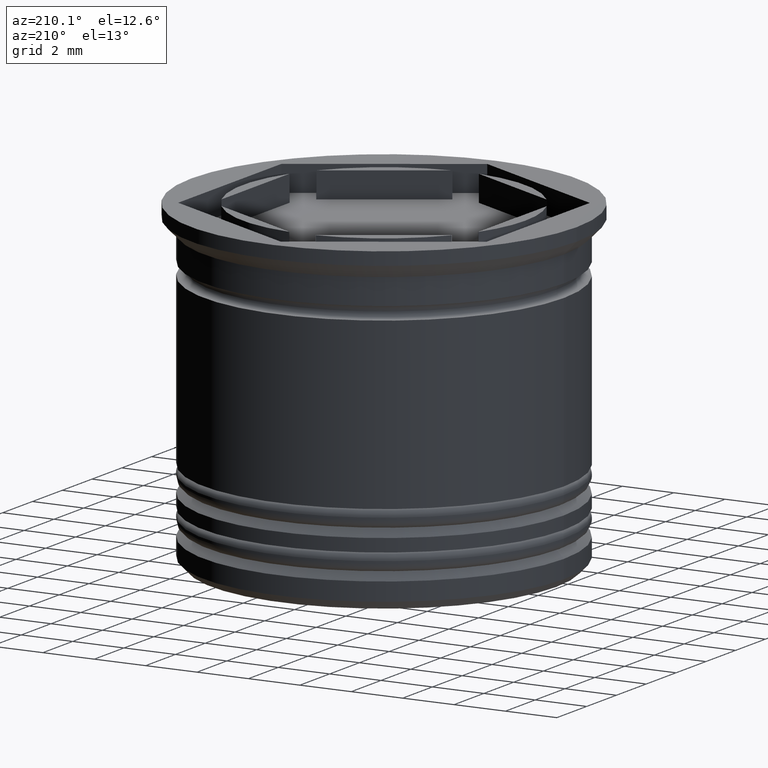
[diagram: clean part render]
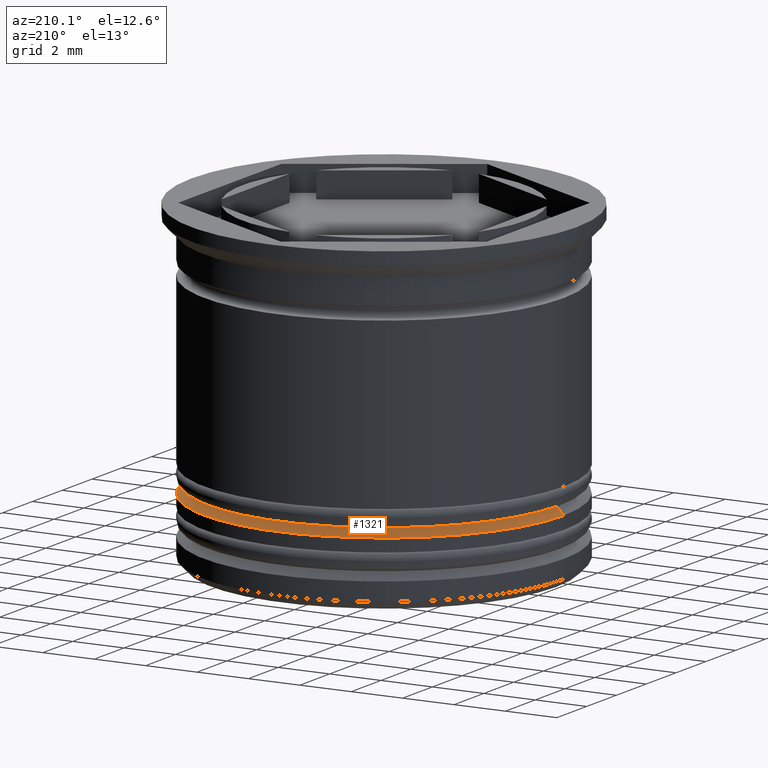
[diagram: same view with one face highlighted and labeled with its STEP entity id]
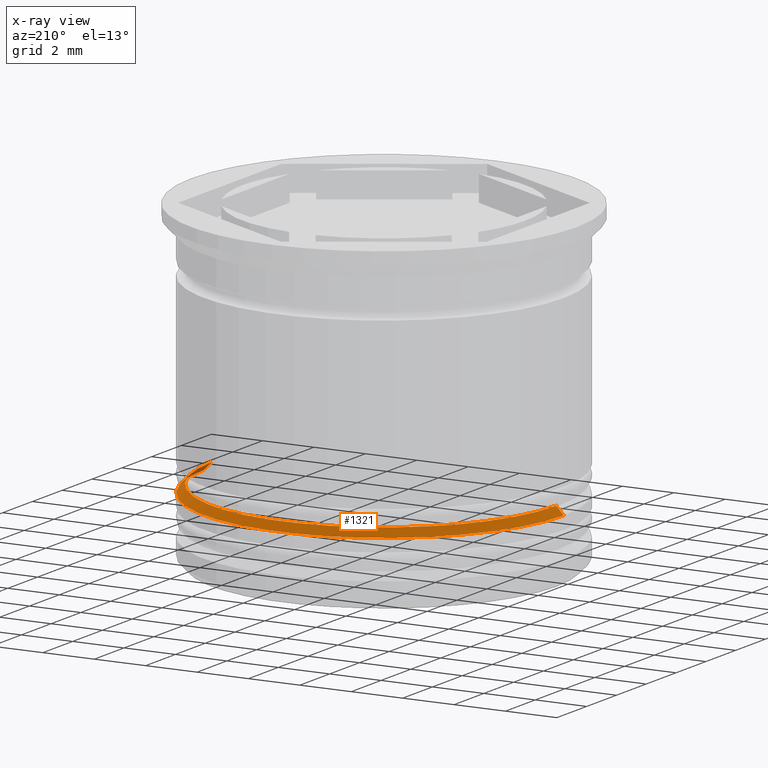
[diagram: x-ray of the same camera — body ghosted, the highlighted face saturated]
A machine part, auxiliary view. The second image highlights one B-rep face of the part: STEP entity #1321.
The next image is the same camera in x-ray: the body ghosted, the highlighted face saturated — about 2% of this face is hidden behind the body in this view.
In plain terms, the highlighted conical surface has half-angle 45 deg.
Its self-contained STEP definition (entity closure, byte-faithful):
#47 = EDGE_CURVE ( 'NONE', #286, #212, #472, .T. ) ;
#105 = DIRECTION ( 'NONE',  ( -0.000000000000000000, -0.000000000000000000, 1.000000000000000000 ) ) ;
#128 = DIRECTION ( 'NONE',  ( 0.000000000000000000, 0.000000000000000000, -1.000000000000000000 ) ) ;
#148 = CONICAL_SURFACE ( 'NONE', #1271, 6.499999999999992006, 0.7853981633974533860 ) ;
#212 = VERTEX_POINT ( 'NONE', #1431 ) ;
#220 = ORIENTED_EDGE ( 'NONE', *, *, #1377, .F. ) ;
#238 = CARTESIAN_POINT ( 'NONE',  ( 0.000000000000000000, 0.000000000000000000, -9.700000000000008171 ) ) ;
#286 = VERTEX_POINT ( 'NONE', #1123 ) ;
#345 = FACE_OUTER_BOUND ( 'NONE', #1441, .T. ) ;
#361 = LINE ( 'NONE', #940, #1045 ) ;
#389 = VERTEX_POINT ( 'NONE', #762 ) ;
#452 = EDGE_CURVE ( 'NONE', #286, #389, #361, .T. ) ;
#472 = CIRCLE ( 'NONE', #1197, 6.700000000000001066 ) ;
#540 = CIRCLE ( 'NONE', #732, 7.000000000000000888 ) ;
#575 = VECTOR ( 'NONE', #1720, 1000.000000000000000 ) ;
#634 = CARTESIAN_POINT ( 'NONE',  ( -6.499999999999992006, 0.000000000000000000, -9.500000000000001776 ) ) ;
#732 = AXIS2_PLACEMENT_3D ( 'NONE', #1639, #128, #1499 ) ;
#762 = CARTESIAN_POINT ( 'NONE',  ( 7.000000000000000888, 0.000000000000000000, -10.00000000000000533 ) ) ;
#846 = ORIENTED_EDGE ( 'NONE', *, *, #47, .F. ) ;
#940 = CARTESIAN_POINT ( 'NONE',  ( 6.499999999999992006, 7.960204194457785616E-16, -9.500000000000001776 ) ) ;
#1043 = ORIENTED_EDGE ( 'NONE', *, *, #1299, .F. ) ;
#1045 = VECTOR ( 'NONE', #1887, 1000.000000000000000 ) ;
#1123 = CARTESIAN_POINT ( 'NONE',  ( 6.700000000000001066, 0.000000000000000000, -9.700000000000008171 ) ) ;
#1170 = DIRECTION ( 'NONE',  ( -1.000000000000000000, 0.000000000000000000, 0.000000000000000000 ) ) ;
#1197 = AXIS2_PLACEMENT_3D ( 'NONE', #238, #105, #1170 ) ;
#1250 = ORIENTED_EDGE ( 'NONE', *, *, #452, .T. ) ;
#1271 = AXIS2_PLACEMENT_3D ( 'NONE', #1413, #1869, #1532 ) ;
#1299 = EDGE_CURVE ( 'NONE', #212, #1621, #1402, .T. ) ;
#1321 = ADVANCED_FACE ( 'NONE', ( #345 ), #148, .T. ) ;
#1377 = EDGE_CURVE ( 'NONE', #1621, #389, #540, .T. ) ;
#1402 = LINE ( 'NONE', #634, #575 ) ;
#1413 = CARTESIAN_POINT ( 'NONE',  ( 0.000000000000000000, 0.000000000000000000, -9.500000000000001776 ) ) ;
#1431 = CARTESIAN_POINT ( 'NONE',  ( -6.700000000000001066, 8.205133554287267548E-16, -9.700000000000008171 ) ) ;
#1441 = EDGE_LOOP ( 'NONE', ( #846, #1250, #220, #1043 ) ) ;
#1499 = DIRECTION ( 'NONE',  ( -1.000000000000000000, 0.000000000000000000, 0.000000000000000000 ) ) ;
#1532 = DIRECTION ( 'NONE',  ( -1.000000000000000000, 0.000000000000000000, 0.000000000000000000 ) ) ;
#1621 = VERTEX_POINT ( 'NONE', #1738 ) ;
#1639 = CARTESIAN_POINT ( 'NONE',  ( 0.000000000000000000, 0.000000000000000000, -10.00000000000000533 ) ) ;
#1720 = DIRECTION ( 'NONE',  ( -0.7071067811865512365, 0.000000000000000000, -0.7071067811865439090 ) ) ;
#1738 = CARTESIAN_POINT ( 'NONE',  ( -7.000000000000000888, 8.572527594031474176E-16, -10.00000000000000533 ) ) ;
#1869 = DIRECTION ( 'NONE',  ( 0.000000000000000000, 0.000000000000000000, -1.000000000000000000 ) ) ;
#1887 = DIRECTION ( 'NONE',  ( 0.7071067811865512365, 8.659560562354978464E-17, -0.7071067811865439090 ) ) ;